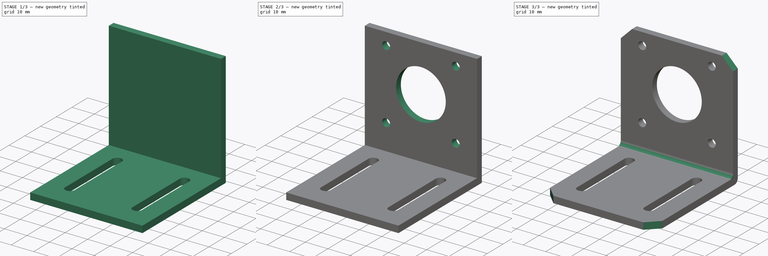
[diagram: build sequence overview — one tinted view per stage of 3, left to right]
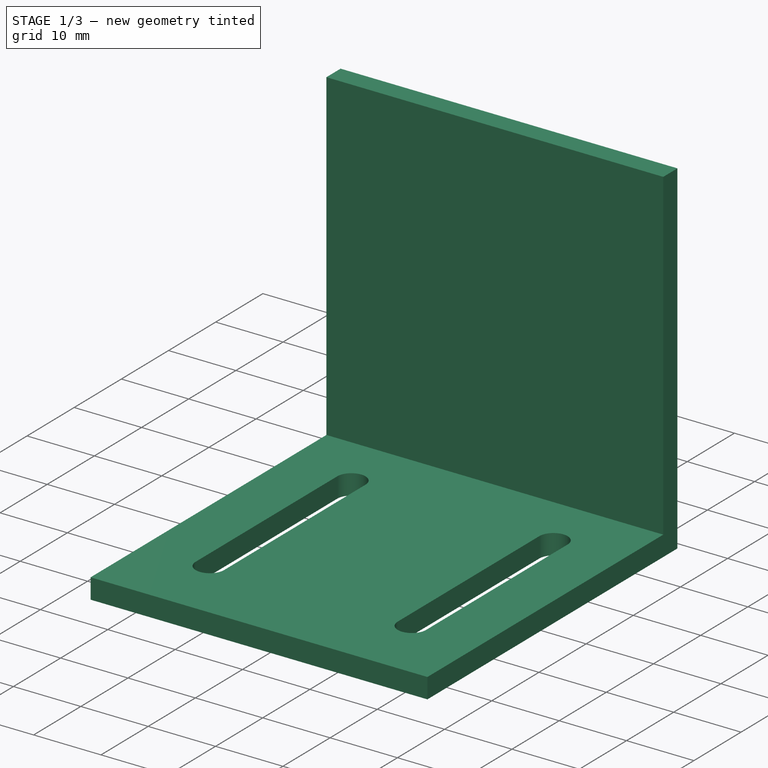
[diagram: stage 1 of 3 — iso view after this stage's code; geometry added in this stage tinted green]
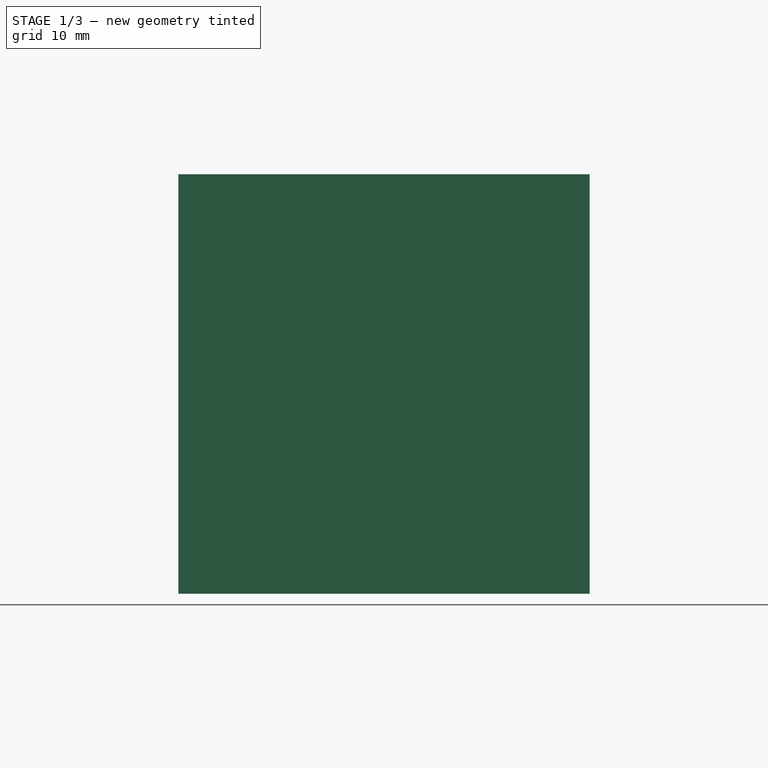
[diagram: stage 1 of 3 — front view after this stage's code; geometry added in this stage tinted green]
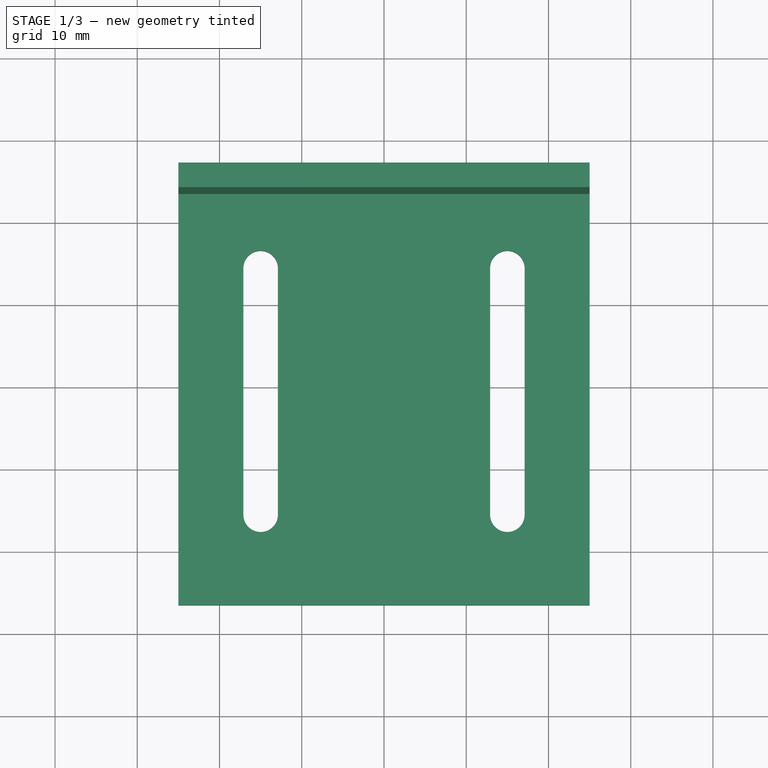
[diagram: stage 1 of 3 — top view after this stage's code; geometry added in this stage tinted green]
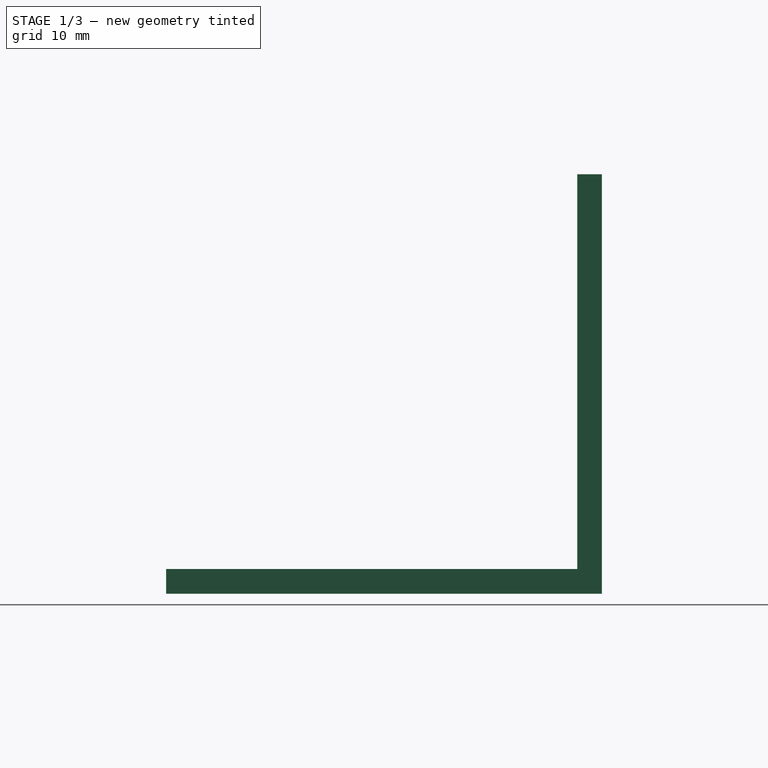
[diagram: stage 1 of 3 — right view after this stage's code; geometry added in this stage tinted green]
FCSTD DOCUMENT  (FreeCAD 0.16R6706 (Git))
Label: motor_mount
License: All rights reserved
LicenseURL: http://en.wikipedia.org/wiki/All_rights_reserved
objects: Sketcher::SketchObject×3, PartDesign::Pad×2, PartDesign::Pocket×1, PartDesign::Fillet×1, PartDesign::Chamfer×1
note: 11 computed .brp shape members not serialized (recipe doc carries the construction recipe); baked Part::Feature solids carry a one-line shape summary decoded from their .brp

FEATURE [Sketcher::SketchObject] Sketch
  sketch-geometry (12):
    g0: LineSegment StartX=-25 StartY=26.5 StartZ=0 EndX=25 EndY=26.5 EndZ=0
    g1: LineSegment StartX=25 StartY=26.5 StartZ=0 EndX=25 EndY=-26.5 EndZ=0
    g2: LineSegment StartX=25 StartY=-26.5 StartZ=0 EndX=-25 EndY=-26.5 EndZ=0
    g3: LineSegment StartX=-25 StartY=-26.5 StartZ=0 EndX=-25 EndY=26.5 EndZ=0
    g4: ArcOfCircle CenterX=-15 CenterY=-15.5 CenterZ=0 NormalX=0 NormalY=0 NormalZ=1 Radius=2.1 StartAngle=3.14159 EndAngle=6.28319
    g5: ArcOfCircle CenterX=-15 CenterY=14.5 CenterZ=0 NormalX=0 NormalY=0 NormalZ=1 Radius=2.1 StartAngle=0 EndAngle=3.14159
    g6: LineSegment StartX=-12.9 StartY=-15.5 StartZ=0 EndX=-12.9 EndY=14.5 EndZ=0
    g7: LineSegment StartX=-17.1 StartY=-15.5 StartZ=0 EndX=-17.1 EndY=14.5 EndZ=0
    g8: ArcOfCircle CenterX=15 CenterY=-15.5 CenterZ=0 NormalX=0 NormalY=0 NormalZ=1 Radius=2.1 StartAngle=3.14159 EndAngle=6.28319
    g9: ArcOfCircle CenterX=15 CenterY=14.5 CenterZ=0 NormalX=0 NormalY=0 NormalZ=1 Radius=2.1 StartAngle=0 EndAngle=3.14159
    g10: LineSegment StartX=17.1 StartY=-15.5 StartZ=0 EndX=17.1 EndY=14.5 EndZ=0
    g11: LineSegment StartX=12.9 StartY=-15.5 StartZ=0 EndX=12.9 EndY=14.5 EndZ=0
  constraints (31):
    c: Coincident(g0,g1)
    c: Coincident(g1,g2)
    c: Coincident(g2,g3)
    c: Coincident(g3,g0)
    c: Horizontal(g0)
    c: Horizontal(g2)
    c: Vertical(g1)
    c: Vertical(g3)
    c: Tangent(g4,g7) = 1.5708
    c: Tangent(g4,g6) = -1.5708
    c: Tangent(g6,g5) = -1.5708
    c: Tangent(g7,g5) = 1.5708
    c: Vertical(g6)
    c: Equal(g4,g5)
    c: Tangent(g8,g11) = 1.5708
    c: Tangent(g8,g10) = -1.5708
    c: Tangent(g10,g9) = -1.5708
    c: Tangent(g11,g9) = 1.5708
    c: Vertical(g10)
    c: Equal(g8,g9)
    c: Symmetric(g4,g8,g-2)
    c: Symmetric(g5,g9,g-2)
    c: Symmetric(g2,g1,g-2)
    c: Symmetric(g2,g0,g-1)
    c: DistanceX(g2) = -50
    c: DistanceY(g1) = -53
    c: DistanceY(g8,g1) = -11
    c: DistanceY(g8,g9) = 30
    c: Radius(g9) = 2.1
    c: Equal(g5,g9)
    c: DistanceX(g4,g8) = 30
FEATURE [PartDesign::Pad] Pad
  Length = 3
  Length2 = 100
  Sketch = -> Sketch
  Type = 0
FEATURE [Sketcher::SketchObject] Sketch001
  ExternalGeometry = -> [Pad]
  Placement = pos=(0,0,3) rot=(0,0,1;0rad)
  Support = -> Pad [Face14]
  sketch-geometry (4):
    g0: LineSegment StartX=-25 StartY=26.5 StartZ=0 EndX=25 EndY=26.5 EndZ=0
    g1: LineSegment StartX=25 StartY=26.5 StartZ=0 EndX=25 EndY=23.5 EndZ=0
    g2: LineSegment StartX=25 StartY=23.5 StartZ=0 EndX=-25 EndY=23.5 EndZ=0
    g3: LineSegment StartX=-25 StartY=23.5 StartZ=0 EndX=-25 EndY=26.5 EndZ=0
  constraints (11):
    c: Coincident(g0,g1)
    c: Coincident(g1,g2)
    c: Coincident(g2,g3)
    c: Coincident(g3,g0)
    c: Horizontal(g0)
    c: Horizontal(g2)
    c: Vertical(g1)
    c: Vertical(g3)
    c: Coincident(g0,g-3)
    c: Coincident(g0,g-3)
    c: DistanceY(g3) = 3
FEATURE [PartDesign::Pad] Pad001
  Length = 48
  Length2 = 100
  Sketch = -> Sketch001
  Type = 0
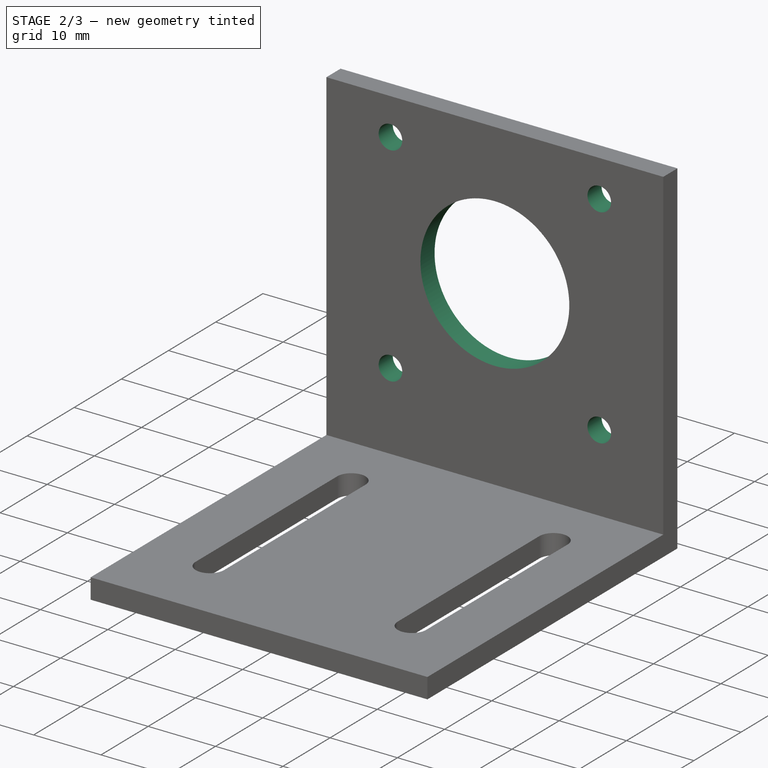
[diagram: stage 2 of 3 — iso view after this stage's code; geometry added in this stage tinted green]
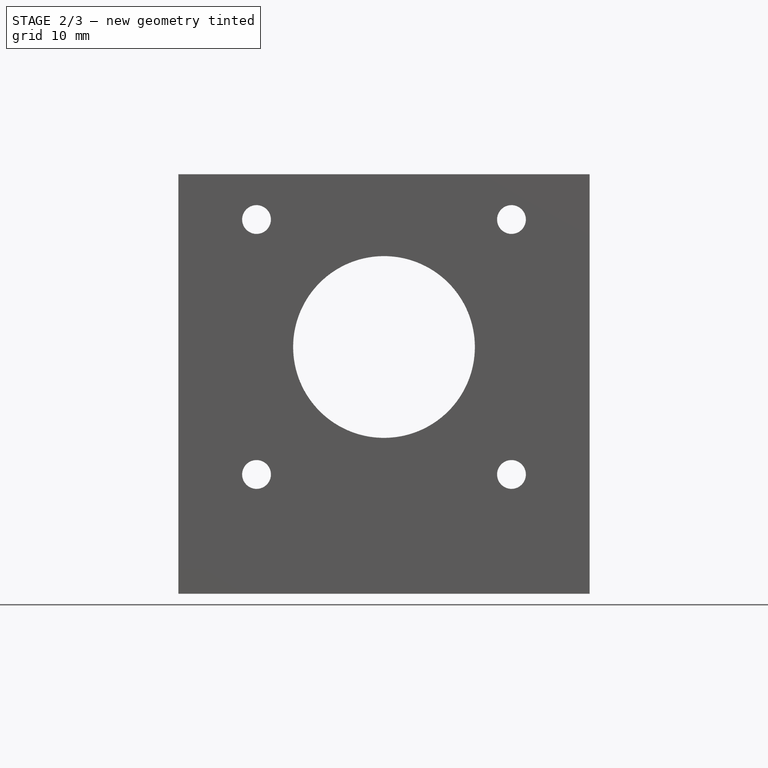
[diagram: stage 2 of 3 — front view after this stage's code; geometry added in this stage tinted green]
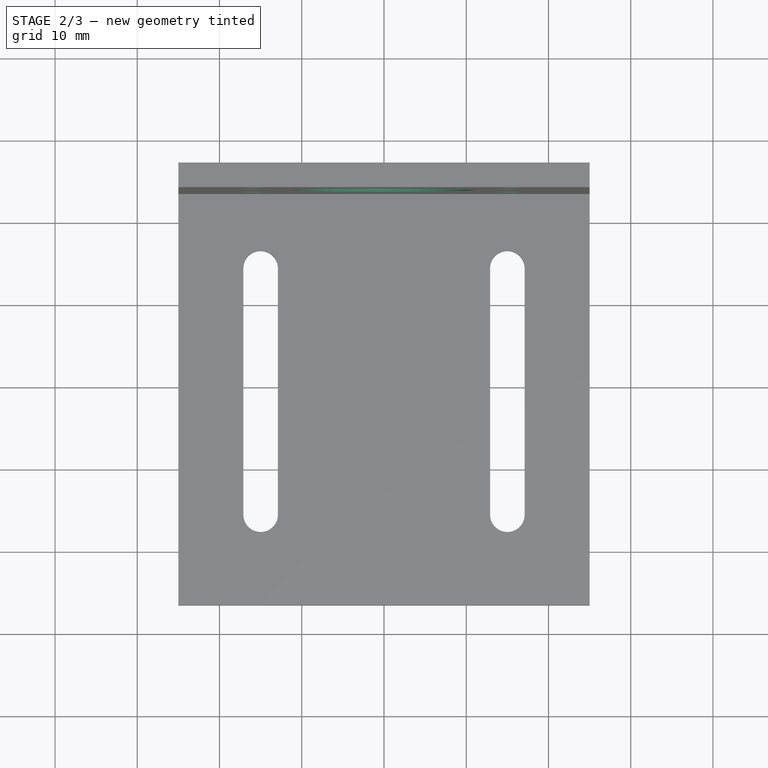
[diagram: stage 2 of 3 — top view after this stage's code; geometry added in this stage tinted green]
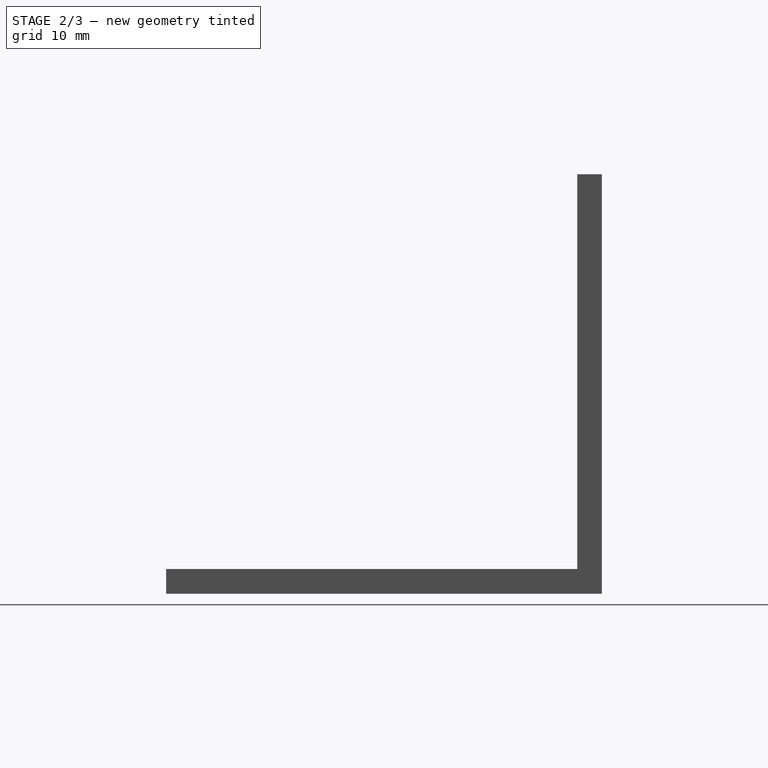
[diagram: stage 2 of 3 — right view after this stage's code; geometry added in this stage tinted green]
FEATURE [Sketcher::SketchObject] Sketch002
  ExternalGeometry = -> [Pad001]
  Placement = pos=(0,26.5,0) rot=(0,0.707107,0.707107;3.14159rad)
  Support = -> Pad001 [Face14]
  sketch-geometry (6):
    g0: Circle CenterX=0 CenterY=30 CenterZ=0 NormalX=0 NormalY=0 NormalZ=1 Radius=11.05
    g1: Circle CenterX=-15.5 CenterY=45.5 CenterZ=0 NormalX=0 NormalY=0 NormalZ=1 Radius=1.75
    g2: Circle CenterX=15.5 CenterY=45.5 CenterZ=0 NormalX=0 NormalY=0 NormalZ=1 Radius=1.75
    g3: Circle CenterX=-15.5 CenterY=14.5 CenterZ=0 NormalX=0 NormalY=0 NormalZ=1 Radius=1.75
    g4: Circle CenterX=15.5 CenterY=14.5 CenterZ=0 NormalX=0 NormalY=0 NormalZ=1 Radius=1.75
    g5: LineSegment [constr] StartX=-11.05 StartY=30 StartZ=0 EndX=11.05 EndY=30 EndZ=0
  constraints (16):
    c: PointOnObject(g0,g-2)
    c: Radius(g0) = 11.05
    c: DistanceY(g-3,g0) = -21
    c: Equal(g1,g2)
    c: Equal(g2,g4)
    c: Equal(g4,g3)
    c: Radius(g1) = 1.75
    c: Symmetric(g1,g2,g-2)
    c: Symmetric(g3,g4,g-2)
    c: PointOnObject(g5,g0)
    c: PointOnObject(g0,g5)
    c: PointOnObject(g5,g0)
    c: Symmetric(g1,g3,g5)
    c: Symmetric(g4,g2,g5)
    c: DistanceY(g2,g4) = -31
    c: DistanceX(g1,g2) = 31
FEATURE [PartDesign::Pocket] Pocket
  Length = 5
  Sketch = -> Sketch002
  Type = 1
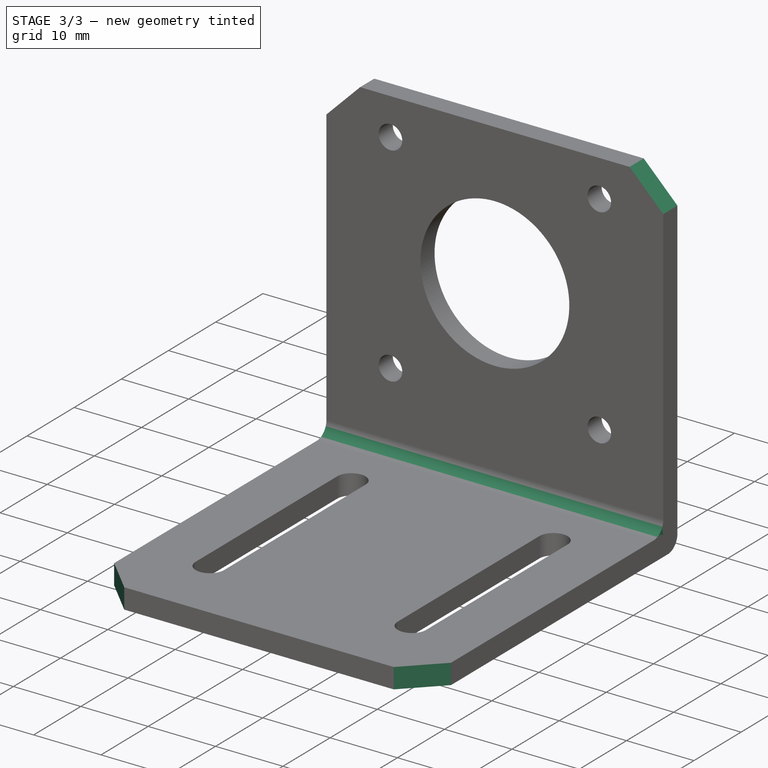
[diagram: stage 3 of 3 — iso view after this stage's code; geometry added in this stage tinted green]
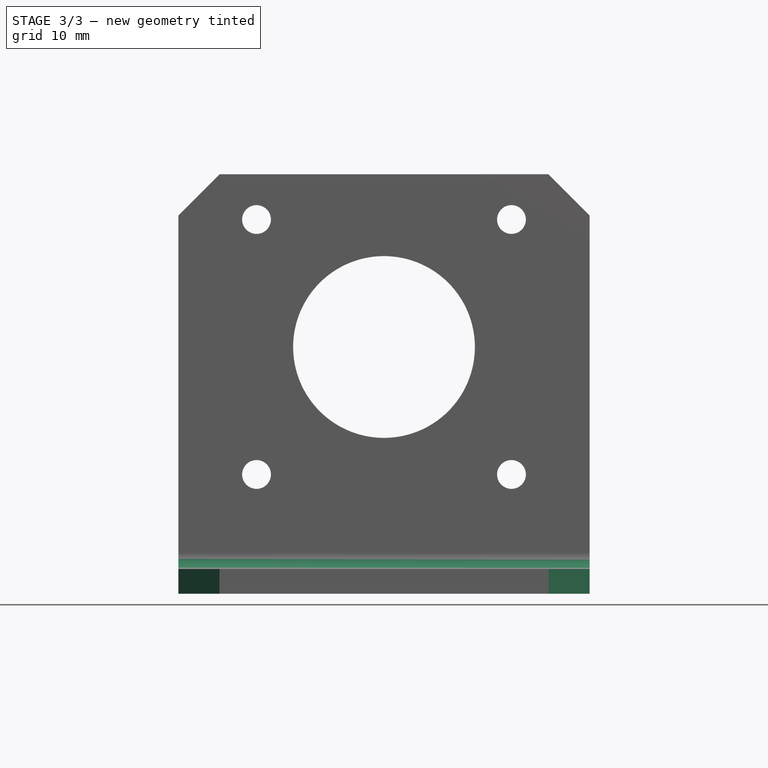
[diagram: stage 3 of 3 — front view after this stage's code; geometry added in this stage tinted green]
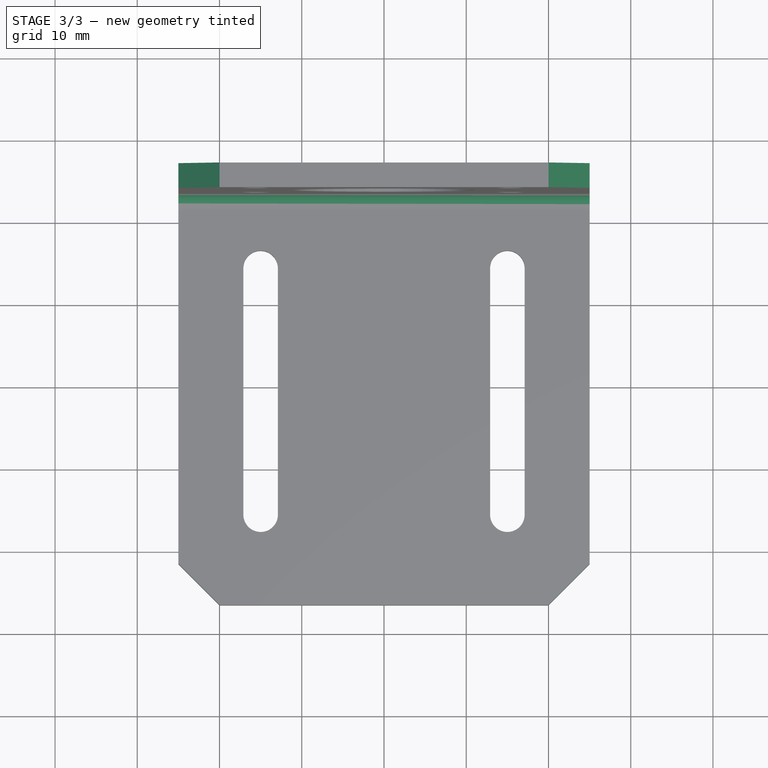
[diagram: stage 3 of 3 — top view after this stage's code; geometry added in this stage tinted green]
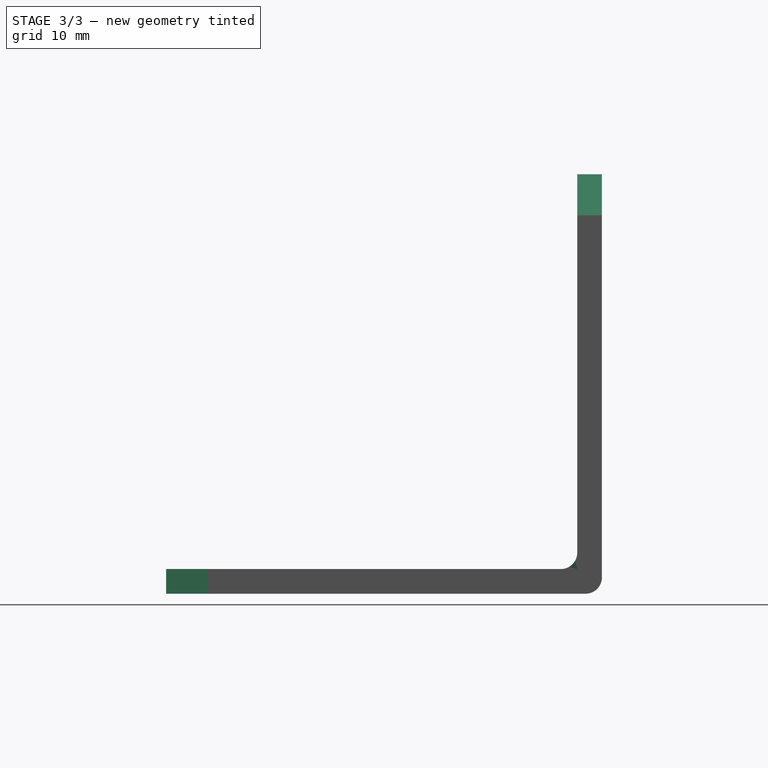
[diagram: stage 3 of 3 — right view after this stage's code; geometry added in this stage tinted green]
FEATURE [PartDesign::Fillet] Fillet
  Base = -> Pocket [Edge1,Edge49]
  Radius = 2
FEATURE [PartDesign::Chamfer] Chamfer
  Base = -> Fillet [Edge46,Edge51,Edge21,Edge17]
  Size = 5
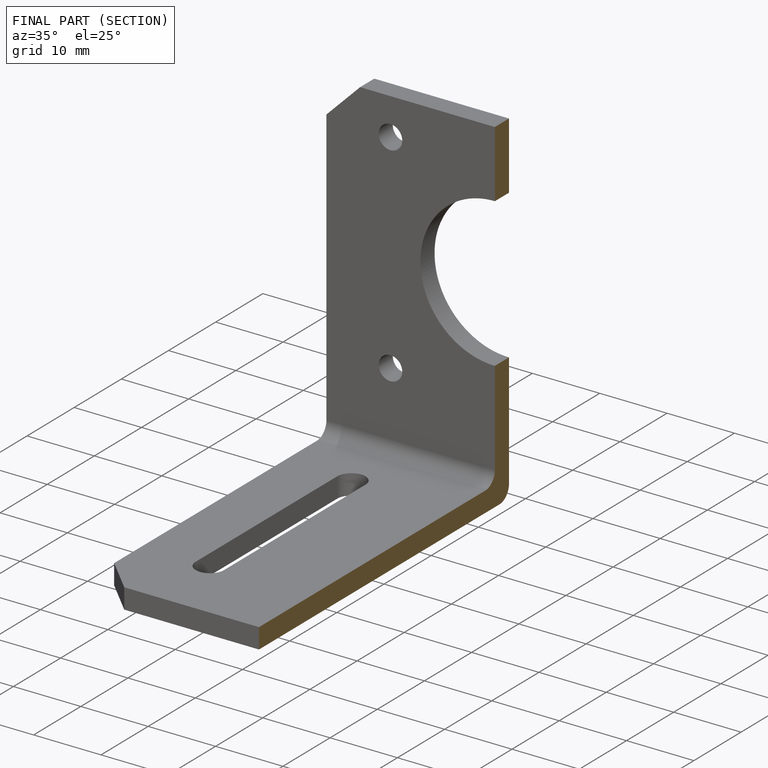
[diagram: finished part — half-section view (interior)]
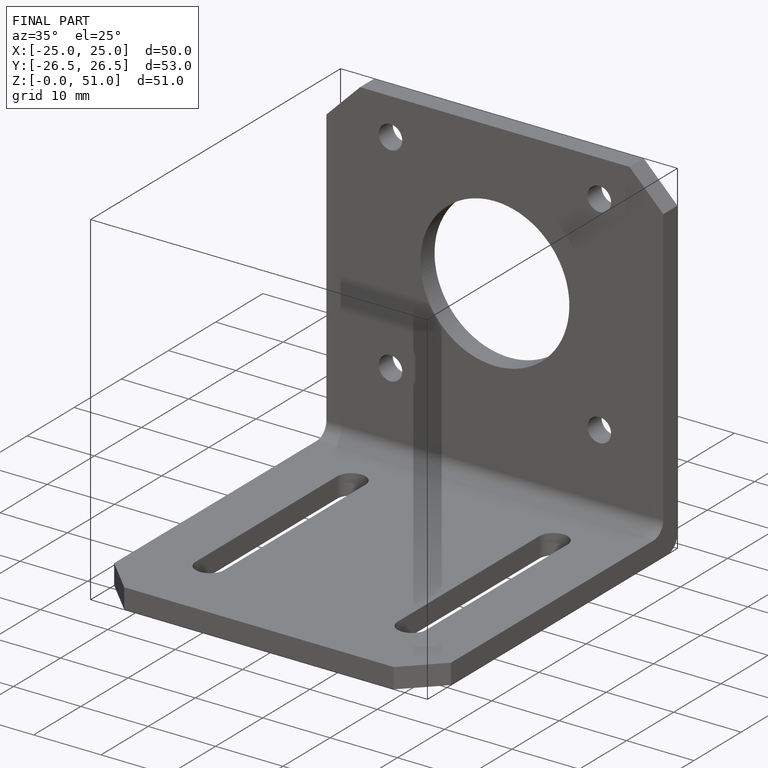
[diagram: finished part — iso view with bounding-box wireframe]
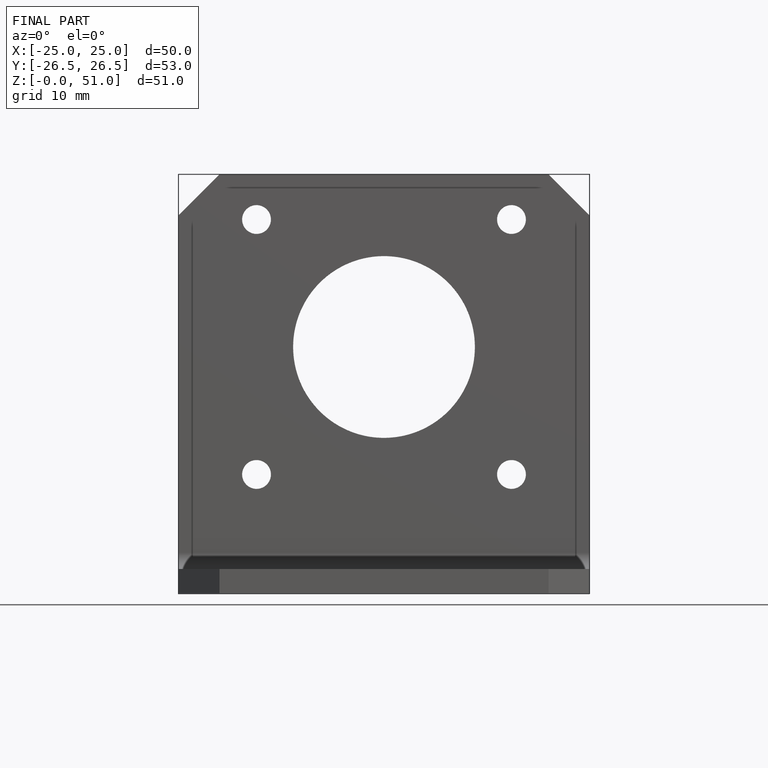
[diagram: finished part — front view with bounding-box wireframe]
